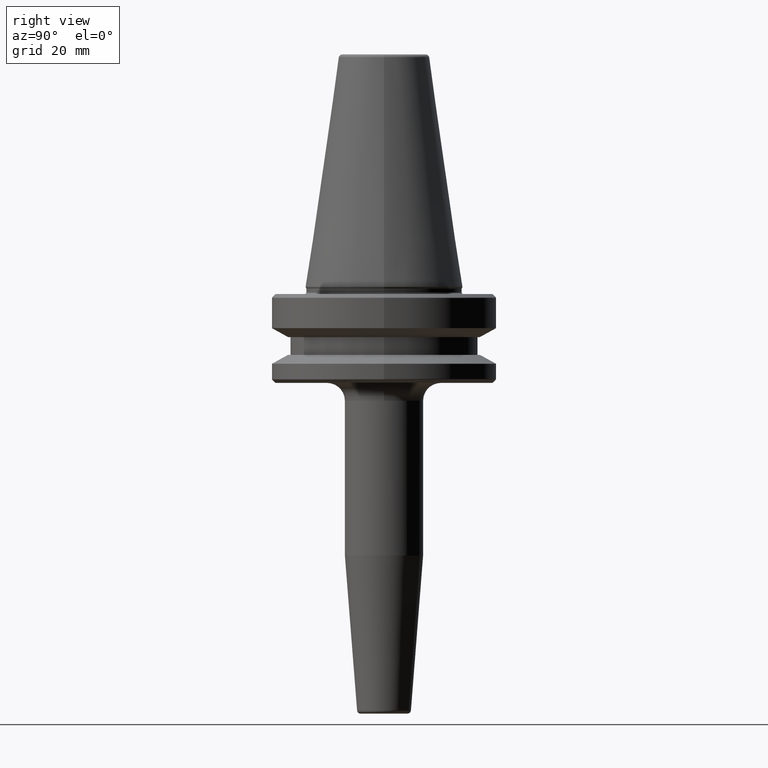
[diagram: clean part render]
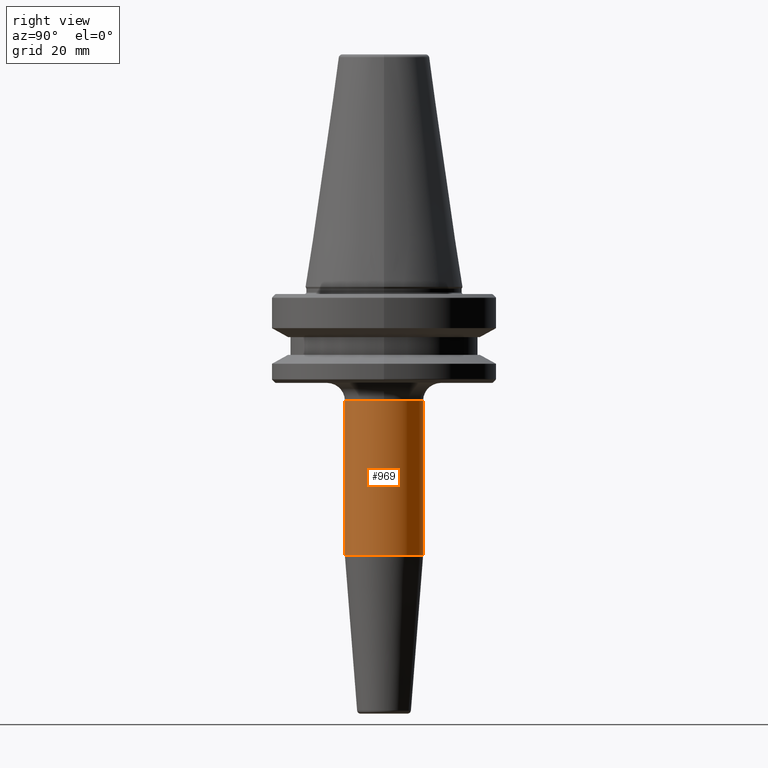
[diagram: same view with one face highlighted and labeled with its STEP entity id]
A machine part, right view. The second image highlights one B-rep face of the part: STEP entity #969.
In plain terms, the highlighted cylindrical surface (partial cylindrical patch) has radius 11 mm, axis along (-0, 0, -1).
Its self-contained STEP definition (entity closure, byte-faithful):
#4 = ORIENTED_EDGE ( 'NONE', *, *, #817, .F. ) ;
#21 = CIRCLE ( 'NONE', #587, 11.00000000000001100 ) ;
#38 = ORIENTED_EDGE ( 'NONE', *, *, #1079, .T. ) ;
#62 = DIRECTION ( 'NONE',  ( -1.000000000000000000, 0.0000000000000000000, 0.0000000000000000000 ) ) ;
#68 = CARTESIAN_POINT ( 'NONE',  ( 1.347111479062090400E-015, -11.00000000000001100, -32.00000000000000000 ) ) ;
#71 = DIRECTION ( 'NONE',  ( 0.0000000000000000000, 0.0000000000000000000, -1.000000000000000000 ) ) ;
#132 = AXIS2_PLACEMENT_3D ( 'NONE', #533, #638, #853 ) ;
#179 = CARTESIAN_POINT ( 'NONE',  ( 0.0000000000000000000, 11.00000000000001100, -32.00000000000000000 ) ) ;
#258 = EDGE_CURVE ( 'NONE', #858, #332, #607, .T. ) ;
#277 = VERTEX_POINT ( 'NONE', #1023 ) ;
#332 = VERTEX_POINT ( 'NONE', #989 ) ;
#349 = VECTOR ( 'NONE', #682, 1000.000000000000000 ) ;
#358 = CARTESIAN_POINT ( 'NONE',  ( 0.0000000000000000000, 2.683935798309101100E-015, -75.52828342338064300 ) ) ;
#384 = FACE_OUTER_BOUND ( 'NONE', #501, .T. ) ;
#400 = AXIS2_PLACEMENT_3D ( 'NONE', #1238, #656, #62 ) ;
#501 = EDGE_LOOP ( 'NONE', ( #1110, #38, #784, #745, #4 ) ) ;
#533 = CARTESIAN_POINT ( 'NONE',  ( 0.0000000000000000000, 5.143516556418884100E-015, -120.0000000000000000 ) ) ;
#587 = AXIS2_PLACEMENT_3D ( 'NONE', #659, #71, #763 ) ;
#607 = LINE ( 'NONE', #820, #349 ) ;
#638 = DIRECTION ( 'NONE',  ( -0.0000000000000000000, 5.530662963891274600E-017, -1.000000000000000000 ) ) ;
#656 = DIRECTION ( 'NONE',  ( 0.0000000000000000000, 0.0000000000000000000, -1.000000000000000000 ) ) ;
#659 = CARTESIAN_POINT ( 'NONE',  ( 0.0000000000000000000, 2.765331481945631400E-016, -32.00000000000000000 ) ) ;
#669 = EDGE_CURVE ( 'NONE', #277, #332, #947, .T. ) ;
#682 = DIRECTION ( 'NONE',  ( -0.0000000000000000000, 5.530662963891274600E-017, -1.000000000000000000 ) ) ;
#740 = VECTOR ( 'NONE', #1209, 1000.000000000000000 ) ;
#745 = ORIENTED_EDGE ( 'NONE', *, *, #669, .F. ) ;
#761 = CARTESIAN_POINT ( 'NONE',  ( 0.0000000000000000000, 11.00000000000001600, -120.0000000000000000 ) ) ;
#763 = DIRECTION ( 'NONE',  ( -1.000000000000000000, 0.0000000000000000000, 0.0000000000000000000 ) ) ;
#784 = ORIENTED_EDGE ( 'NONE', *, *, #258, .T. ) ;
#817 = EDGE_CURVE ( 'NONE', #1156, #277, #999, .T. ) ;
#820 = CARTESIAN_POINT ( 'NONE',  ( 1.347111479062090000E-015, -11.00000000000000700, -120.0000000000000000 ) ) ;
#851 = CIRCLE ( 'NONE', #400, 11.00000000000001100 ) ;
#853 = DIRECTION ( 'NONE',  ( 0.0000000000000000000, 1.000000000000000000, 0.0000000000000000000 ) ) ;
#858 = VERTEX_POINT ( 'NONE', #68 ) ;
#882 = CYLINDRICAL_SURFACE ( 'NONE', #132, 11.00000000000001100 ) ;
#947 = CIRCLE ( 'NONE', #1028, 10.99999999999999600 ) ;
#950 = DIRECTION ( 'NONE',  ( -0.0000000000000000000, 5.530662963891274600E-017, -1.000000000000000000 ) ) ;
#969 = ADVANCED_FACE ( 'NONE', ( #384 ), #882, .T. ) ;
#983 = DIRECTION ( 'NONE',  ( 0.0000000000000000000, 1.000000000000000000, 0.0000000000000000000 ) ) ;
#989 = CARTESIAN_POINT ( 'NONE',  ( 0.0000000000000000000, -10.99999999999999300, -75.52828342338064300 ) ) ;
#999 = LINE ( 'NONE', #761, #740 ) ;
#1023 = CARTESIAN_POINT ( 'NONE',  ( 1.347111479062088000E-015, 11.00000000000000000, -75.52828342338064300 ) ) ;
#1028 = AXIS2_PLACEMENT_3D ( 'NONE', #358, #950, #983 ) ;
#1055 = CARTESIAN_POINT ( 'NONE',  ( 11.00000000000001100, 1.929806327043491700E-015, -32.00000000000000000 ) ) ;
#1060 = EDGE_CURVE ( 'NONE', #1156, #1158, #851, .T. ) ;
#1079 = EDGE_CURVE ( 'NONE', #1158, #858, #21, .T. ) ;
#1110 = ORIENTED_EDGE ( 'NONE', *, *, #1060, .T. ) ;
#1156 = VERTEX_POINT ( 'NONE', #179 ) ;
#1158 = VERTEX_POINT ( 'NONE', #1055 ) ;
#1209 = DIRECTION ( 'NONE',  ( -0.0000000000000000000, 5.530662963891274600E-017, -1.000000000000000000 ) ) ;
#1238 = CARTESIAN_POINT ( 'NONE',  ( 0.0000000000000000000, 2.765331481945631400E-016, -32.00000000000000000 ) ) ;